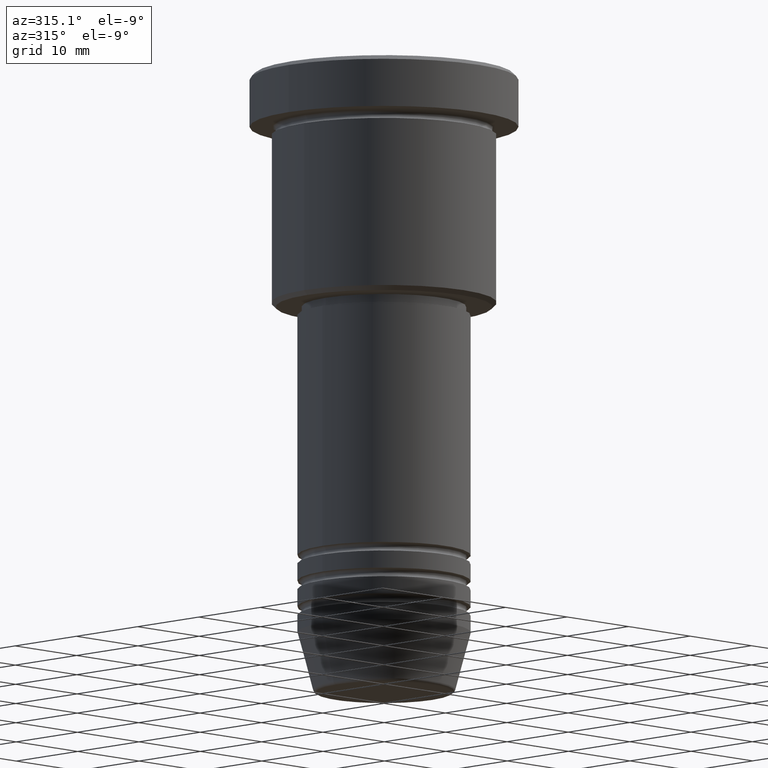
[diagram: clean part render]
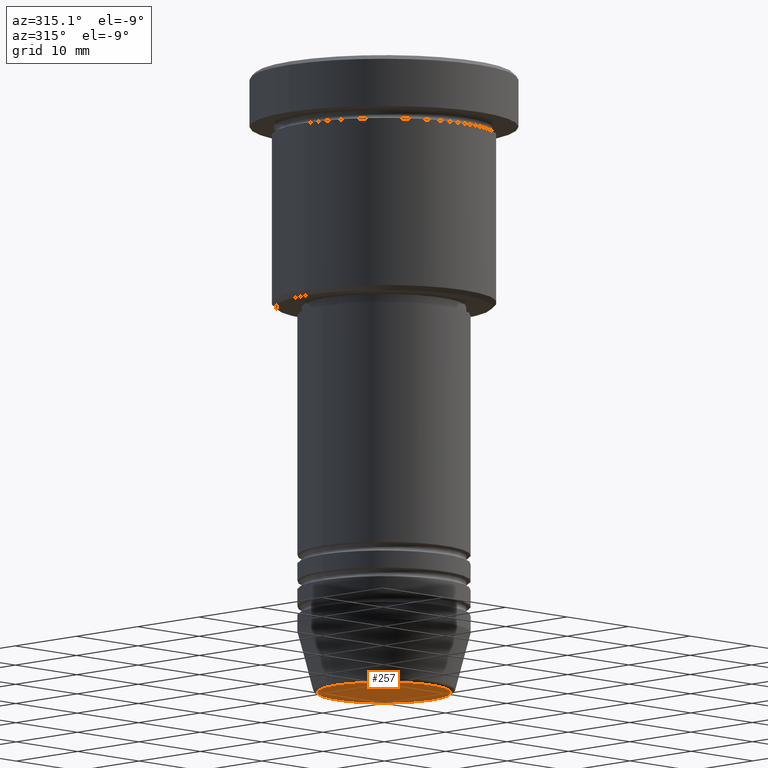
[diagram: same view with one face highlighted and labeled with its STEP entity id]
A machine part, auxiliary view. The second image highlights one B-rep face of the part: STEP entity #257.
In plain terms, the highlighted planar face has unit normal (0, -0, 1).
Its self-contained STEP definition (entity closure, byte-faithful):
#154 = VERTEX_POINT ( 'NONE', #190 ) ;
#165 = DIRECTION ( 'NONE',  ( 0.000000000000000000, 0.000000000000000000, -1.000000000000000000 ) ) ;
#190 = CARTESIAN_POINT ( 'NONE',  ( -7.740692158992654726, 9.775343368540039135E-16, -72.00000000000001421 ) ) ;
#210 = FACE_OUTER_BOUND ( 'NONE', #217, .T. ) ;
#213 = VERTEX_POINT ( 'NONE', #296 ) ;
#217 = EDGE_LOOP ( 'NONE', ( #1054, #908 ) ) ;
#246 = AXIS2_PLACEMENT_3D ( 'NONE', #742, #1115, #287 ) ;
#257 = ADVANCED_FACE ( 'NONE', ( #210 ), #583, .F. ) ;
#267 = CIRCLE ( 'NONE', #475, 7.740692158992654726 ) ;
#287 = DIRECTION ( 'NONE',  ( 1.000000000000000000, 0.000000000000000000, 0.000000000000000000 ) ) ;
#296 = CARTESIAN_POINT ( 'NONE',  ( 7.740692158992654726, 0.000000000000000000, -72.00000000000001421 ) ) ;
#475 = AXIS2_PLACEMENT_3D ( 'NONE', #850, #1170, #710 ) ;
#583 = PLANE ( 'NONE',  #246 ) ;
#602 = DIRECTION ( 'NONE',  ( 1.000000000000000000, 0.000000000000000000, 0.000000000000000000 ) ) ;
#617 = CIRCLE ( 'NONE', #749, 7.740692158992654726 ) ;
#645 = EDGE_CURVE ( 'NONE', #213, #154, #267, .T. ) ;
#710 = DIRECTION ( 'NONE',  ( 1.000000000000000000, 0.000000000000000000, 0.000000000000000000 ) ) ;
#726 = EDGE_CURVE ( 'NONE', #154, #213, #617, .T. ) ;
#742 = CARTESIAN_POINT ( 'NONE',  ( 0.000000000000000000, 0.000000000000000000, -72.00000000000001421 ) ) ;
#749 = AXIS2_PLACEMENT_3D ( 'NONE', #1060, #165, #602 ) ;
#850 = CARTESIAN_POINT ( 'NONE',  ( 0.000000000000000000, 0.000000000000000000, -72.00000000000001421 ) ) ;
#908 = ORIENTED_EDGE ( 'NONE', *, *, #726, .T. ) ;
#1054 = ORIENTED_EDGE ( 'NONE', *, *, #645, .T. ) ;
#1060 = CARTESIAN_POINT ( 'NONE',  ( 0.000000000000000000, 0.000000000000000000, -72.00000000000001421 ) ) ;
#1115 = DIRECTION ( 'NONE',  ( 0.000000000000000000, -0.000000000000000000, 1.000000000000000000 ) ) ;
#1170 = DIRECTION ( 'NONE',  ( 0.000000000000000000, 0.000000000000000000, -1.000000000000000000 ) ) ;